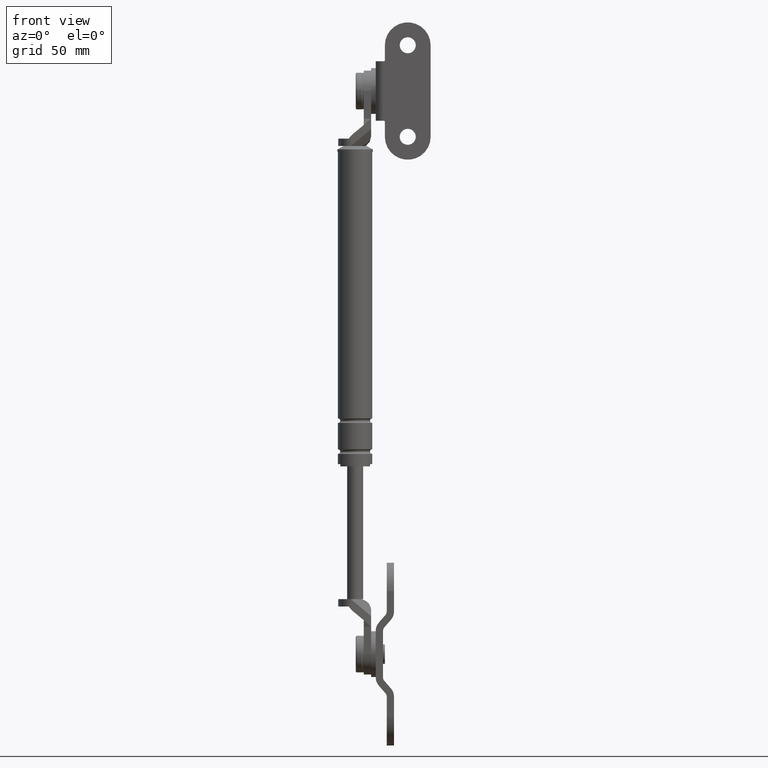
[diagram: clean part render]
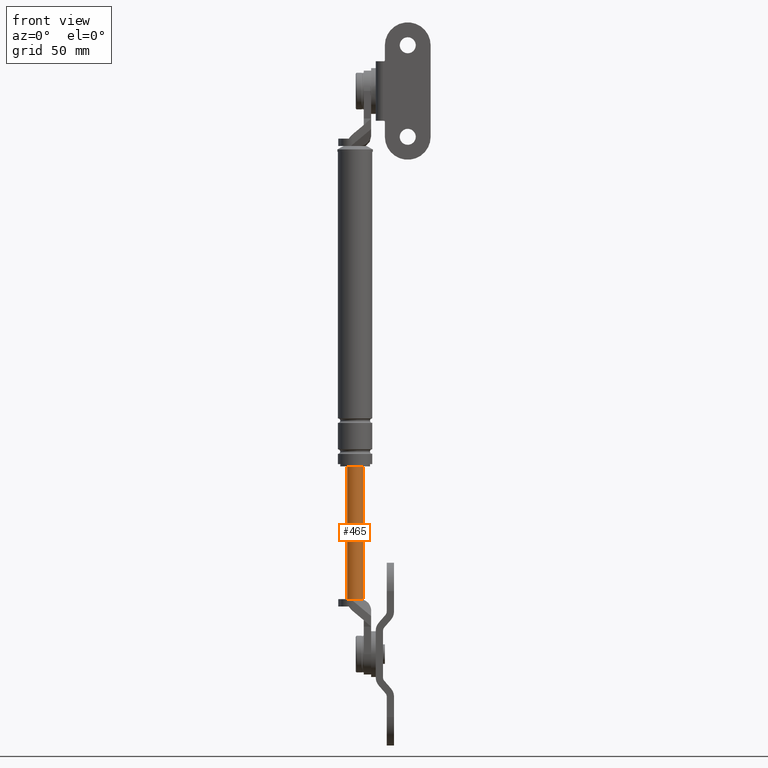
[diagram: same view with one face highlighted and labeled with its STEP entity id]
A machine part, front view. The second image highlights one B-rep face of the part: STEP entity #465.
In plain terms, the highlighted cylindrical surface (edge-blend (fillet) strip) has radius 3.5 mm, axis along (0, 0, 1).
Its self-contained STEP definition (entity closure, byte-faithful):
#465=ADVANCED_FACE('',(#1902),#1901,.T.);
#1901=CYLINDRICAL_SURFACE('',#2972,3.50000000000E+000);
#1902=FACE_OUTER_BOUND('',#2973,.T.);
#2969=CARTESIAN_POINT('',(0.00000000000E+000,0.00000000000E+000,0.00000000000E+000));
#2970=DIRECTION('',(-0.00000000000E+000,-0.00000000000E+000,1.00000000000E+000));
#2971=DIRECTION('',(1.00000000000E+000,-0.00000000000E+000,-0.00000000000E+000));
#2972=AXIS2_PLACEMENT_3D('',#2969,#2970,#2971);
#2973=EDGE_LOOP('',(#3681,#3682,#3683,#3684,#3685));
#3681=ORIENTED_EDGE('',*,*,#4016,.F.);
#3682=ORIENTED_EDGE('',*,*,#4011,.F.);
#3683=ORIENTED_EDGE('',*,*,#4045,.T.);
#3684=ORIENTED_EDGE('',*,*,#4013,.F.);
#3685=ORIENTED_EDGE('',*,*,#4046,.F.);
#4011=EDGE_CURVE('',#6156,#6163,#6164,.T.);
#4013=EDGE_CURVE('',#6176,#6177,#6178,.T.);
#4016=EDGE_CURVE('',#6163,#6197,#6198,.T.);
#4045=EDGE_CURVE('',#6156,#6177,#6383,.T.);
#4046=EDGE_CURVE('',#6197,#6176,#6389,.T.);
#6156=VERTEX_POINT('',#7689);
#6163=VERTEX_POINT('',#7694);
#6164=CIRCLE('',#7698,3.50000000000E+000);
#6176=VERTEX_POINT('',#7702);
#6177=VERTEX_POINT('',#7703);
#6178=CIRCLE('',#7707,3.50000000000E+000);
#6197=VERTEX_POINT('',#7716);
#6198=CIRCLE('',#7720,3.50000000000E+000);
#6383=(BOUNDED_CURVE() B_SPLINE_CURVE(1,(#7822,#7823),.UNSPECIFIED.,.F.,.F.) B_SPLINE_CURVE_WITH_KNOTS((2,2),(8.33333332085E-002,9.16666666222E-001),.UNSPECIFIED.) CURVE() GEOMETRIC_REPRESENTATION_ITEM() RATIONAL_B_SPLINE_CURVE((1.00000000000E+000,1.00000000000E+000)) REPRESENTATION_ITEM('') );
#6389=(BOUNDED_CURVE() B_SPLINE_CURVE(1,(#7824,#7825),.UNSPECIFIED.,.F.,.F.) B_SPLINE_CURVE_WITH_KNOTS((2,2),(8.33333333333E-002,9.16666666667E-001),.UNSPECIFIED.) CURVE() GEOMETRIC_REPRESENTATION_ITEM() RATIONAL_B_SPLINE_CURVE((7.50000000000E-001,7.50000000000E-001)) REPRESENTATION_ITEM('') );
#7689=CARTESIAN_POINT('',(3.50000000000E+000,0.00000000000E+000,-1.09000015000E+002));
#7694=CARTESIAN_POINT('',(2.00000000000E+000,-2.87228132327E+000,-1.09000015000E+002));
#7695=CARTESIAN_POINT('',(0.00000000000E+000,0.00000000000E+000,-1.09000015000E+002));
#7696=DIRECTION('',(0.00000000000E+000,0.00000000000E+000,-1.00000000000E+000));
#7697=DIRECTION('',(5.71428571429E-001,8.20651806648E-001,0.00000000000E+000));
#7698=AXIS2_PLACEMENT_3D('',#7695,#7696,#7697);
#7702=CARTESIAN_POINT('',(-3.50000000000E+000,0.00000000000E+000,-5.10000000000E+001));
#7703=CARTESIAN_POINT('',(3.50000000000E+000,4.44089209850E-016,-5.10000000000E+001));
#7704=CARTESIAN_POINT('',(0.00000000000E+000,0.00000000000E+000,-5.10000000000E+001));
#7705=DIRECTION('',(0.00000000000E+000,0.00000000000E+000,1.00000000000E+000));
#7706=DIRECTION('',(-1.00000000000E+000,-1.22460635382E-016,0.00000000000E+000));
#7707=AXIS2_PLACEMENT_3D('',#7704,#7705,#7706);
#7716=CARTESIAN_POINT('',(-3.50000000000E+000,-1.45175480991E-007,-1.09000015000E+002));
#7717=CARTESIAN_POINT('',(0.00000000000E+000,0.00000000000E+000,-1.09000015000E+002));
#7718=DIRECTION('',(0.00000000000E+000,0.00000000000E+000,-1.00000000000E+000));
#7719=DIRECTION('',(1.00000000000E+000,-0.00000000000E+000,-0.00000000000E+000));
#7720=AXIS2_PLACEMENT_3D('',#7717,#7718,#7719);
#7822=CARTESIAN_POINT('',(3.50000000000E+000,0.00000000000E+000,-1.09000015009E+002));
#7823=CARTESIAN_POINT('',(3.50000000000E+000,0.00000000000E+000,-5.10000000310E+001));
#7824=CARTESIAN_POINT('',(-3.50000000000E+000,0.00000000000E+000,-1.09000015000E+002));
#7825=CARTESIAN_POINT('',(-3.50000000000E+000,0.00000000000E+000,-5.10000000000E+001));